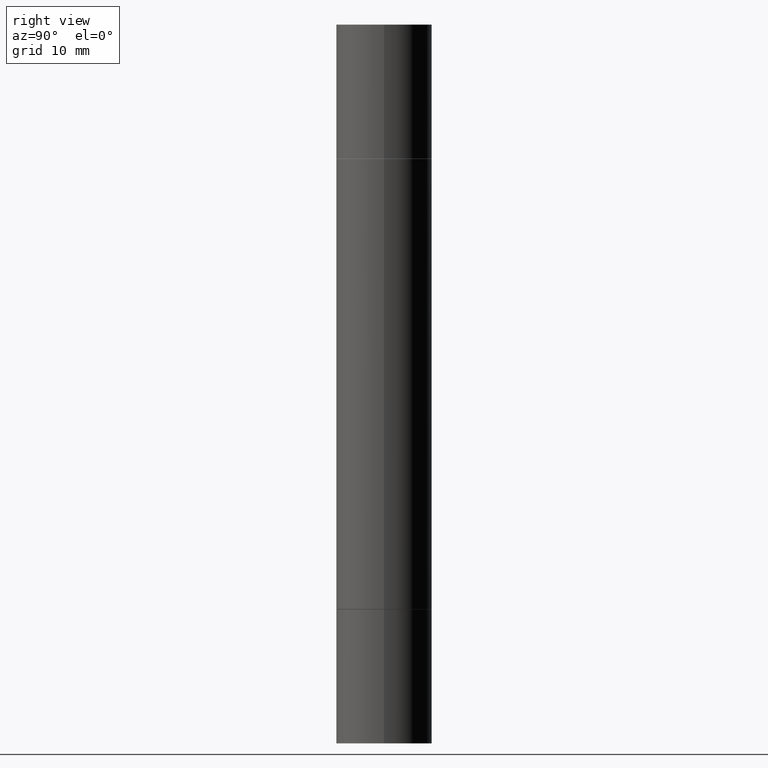
[diagram: clean part render]
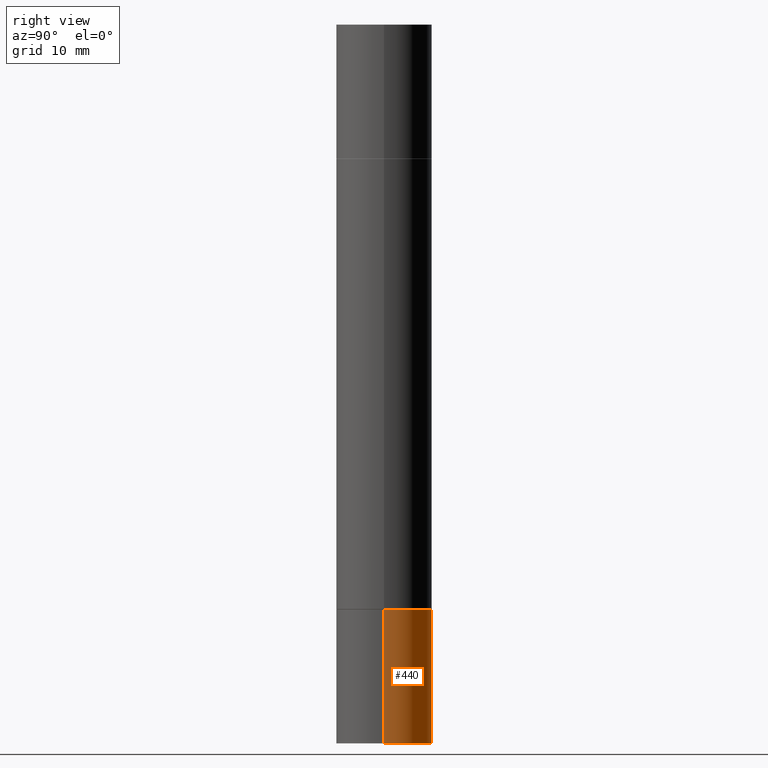
[diagram: same view with one face highlighted and labeled with its STEP entity id]
A machine part, right view. The second image highlights one B-rep face of the part: STEP entity #440.
In plain terms, the highlighted cylindrical surface (partial cylindrical patch) has radius 5 mm, axis along (-0, 0, 1).
Its self-contained STEP definition (entity closure, byte-faithful):
#16 = VERTEX_POINT ( 'NONE', #581 ) ;
#36 = VECTOR ( 'NONE', #515, 39.37007874015748143 ) ;
#43 = VERTEX_POINT ( 'NONE', #55 ) ;
#55 = CARTESIAN_POINT ( 'NONE',  ( -0.1968500000000000250, -7.948690465007109319E-15, -2.401599999999999735 ) ) ;
#59 = LINE ( 'NONE', #118, #485 ) ;
#113 = EDGE_CURVE ( 'NONE', #628, #43, #59, .T. ) ;
#118 = CARTESIAN_POINT ( 'NONE',  ( -0.1968500000000000250, 1.398703375343757393E-15, -9.682923725166783677E-30 ) ) ;
#140 = AXIS2_PLACEMENT_3D ( 'NONE', #266, #677, #322 ) ;
#168 = FACE_OUTER_BOUND ( 'NONE', #567, .T. ) ;
#177 = ORIENTED_EDGE ( 'NONE', *, *, #363, .F. ) ;
#208 = DIRECTION ( 'NONE',  ( 1.000000000000000000, -6.982962677686267499E-15, 0.000000000000000000 ) ) ;
#213 = ORIENTED_EDGE ( 'NONE', *, *, #463, .F. ) ;
#266 = CARTESIAN_POINT ( 'NONE',  ( 0.000000000000000000, 0.000000000000000000, 0.000000000000000000 ) ) ;
#282 = AXIS2_PLACEMENT_3D ( 'NONE', #377, #587, #424 ) ;
#306 = CARTESIAN_POINT ( 'NONE',  ( 7.220980290903470182E-29, -1.030964609733603853E-14, -2.952799999999999869 ) ) ;
#313 = CIRCLE ( 'NONE', #282, 0.1968500000000000250 ) ;
#322 = DIRECTION ( 'NONE',  ( 1.000000000000000000, -6.982962677686265922E-15, 4.876176775795935793E-29 ) ) ;
#363 = EDGE_CURVE ( 'NONE', #492, #16, #465, .T. ) ;
#367 = CARTESIAN_POINT ( 'NONE',  ( 0.1968500000000000250, -1.168424230043858014E-14, -2.952799999999999869 ) ) ;
#374 = CYLINDRICAL_SURFACE ( 'NONE', #140, 0.1968500000000000250 ) ;
#376 = DIRECTION ( 'NONE',  ( -2.445468806185136877E-29, 3.491481338843145188E-15, 1.000000000000000000 ) ) ;
#377 = CARTESIAN_POINT ( 'NONE',  ( 5.873037884934223228E-29, -8.385141583365697263E-15, -2.401599999999999735 ) ) ;
#388 = EDGE_CURVE ( 'NONE', #492, #628, #512, .T. ) ;
#422 = ORIENTED_EDGE ( 'NONE', *, *, #113, .T. ) ;
#424 = DIRECTION ( 'NONE',  ( 1.000000000000000000, -6.982962677686262766E-15, 0.000000000000000000 ) ) ;
#440 = ADVANCED_FACE ( 'NONE', ( #168 ), #374, .T. ) ;
#463 = EDGE_CURVE ( 'NONE', #16, #43, #313, .T. ) ;
#465 = LINE ( 'NONE', #624, #36 ) ;
#485 = VECTOR ( 'NONE', #376, 39.37007874015748143 ) ;
#492 = VERTEX_POINT ( 'NONE', #367 ) ;
#512 = CIRCLE ( 'NONE', #600, 0.1968500000000000250 ) ;
#515 = DIRECTION ( 'NONE',  ( -2.445468806185136877E-29, 3.491481338843145188E-15, 1.000000000000000000 ) ) ;
#567 = EDGE_LOOP ( 'NONE', ( #577, #422, #213, #177 ) ) ;
#577 = ORIENTED_EDGE ( 'NONE', *, *, #388, .T. ) ;
#581 = CARTESIAN_POINT ( 'NONE',  ( 0.1968500000000000250, -9.759737786468237294E-15, -2.401599999999999735 ) ) ;
#587 = DIRECTION ( 'NONE',  ( -2.445468806185136597E-29, 3.491481338843145583E-15, 1.000000000000000000 ) ) ;
#600 = AXIS2_PLACEMENT_3D ( 'NONE', #306, #671, #208 ) ;
#624 = CARTESIAN_POINT ( 'NONE',  ( 0.1968500000000000250, -1.374596203102541608E-15, 9.598753983154300858E-30 ) ) ;
#628 = VERTEX_POINT ( 'NONE', #645 ) ;
#645 = CARTESIAN_POINT ( 'NONE',  ( -0.1968500000000000250, -7.948690465007109319E-15, -2.952799999999999869 ) ) ;
#671 = DIRECTION ( 'NONE',  ( -2.445468806185136597E-29, 3.491481338843145583E-15, 1.000000000000000000 ) ) ;
#677 = DIRECTION ( 'NONE',  ( -2.445468806185136597E-29, 3.491481338843145583E-15, 1.000000000000000000 ) ) ;